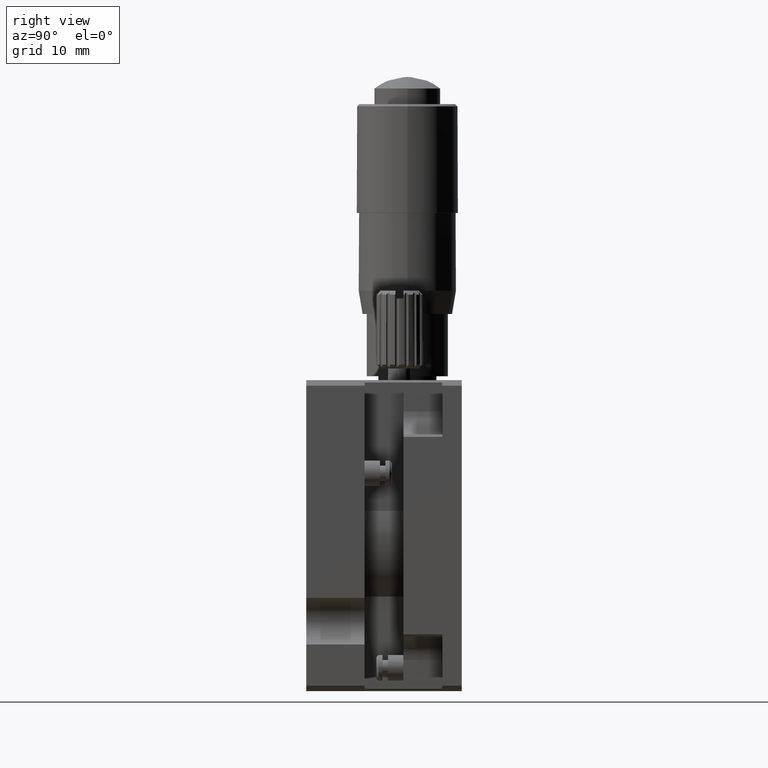
[diagram: clean part render]
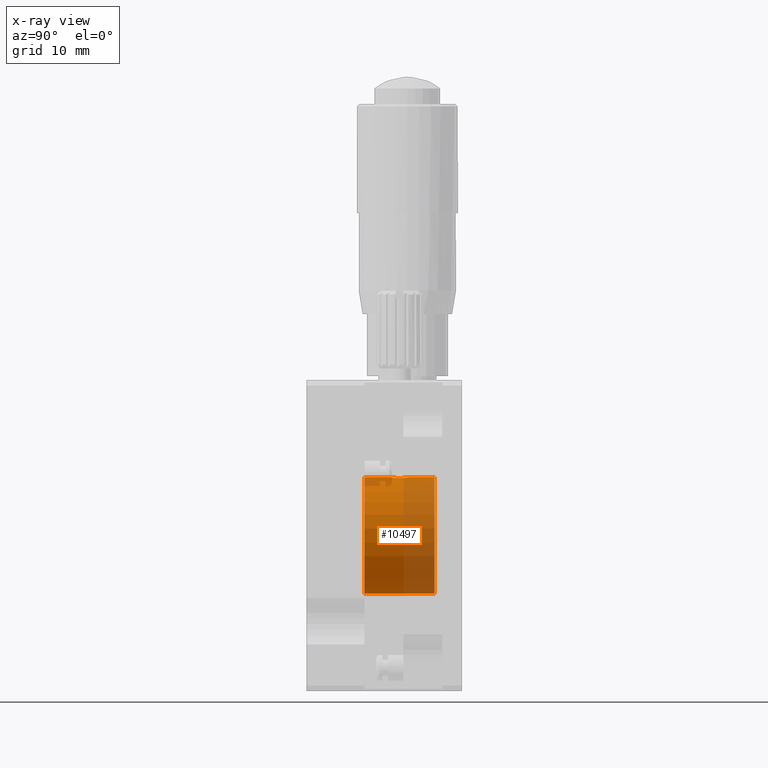
[diagram: x-ray — body ghosted, one internal face saturated and labeled with its STEP entity id]
A machine part, right view, then the same camera in x-ray: the body is ghosted and one INTERNAL B-rep face — a face not visible from any outside direction — is saturated and labeled: STEP entity #10497.
In plain terms, the highlighted cylindrical surface (partial cylindrical patch) has radius 7.5 mm, axis along (0, 1, 0).
Its self-contained STEP definition (entity closure, byte-faithful):
#7 = VERTEX_POINT ( 'NONE', #5739 ) ;
#18 = VERTEX_POINT ( 'NONE', #5742 ) ;
#19 = VERTEX_POINT ( 'NONE', #5715 ) ;
#24 = VERTEX_POINT ( 'NONE', #5730 ) ;
#27 = VERTEX_POINT ( 'NONE', #5732 ) ;
#34 = VERTEX_POINT ( 'NONE', #5734 ) ;
#53 = VERTEX_POINT ( 'NONE', #5750 ) ;
#138 = B_SPLINE_CURVE_WITH_KNOTS ( 'NONE', 3,
 ( #5835, #5824, #5833, #5812, #5825, #5848, #5836, #5849, #5806, #5809 ),
 .UNSPECIFIED., .F., .F.,
 ( 4, 2, 2, 2, 4 ),
 ( 0.003850478827912868100, 0.004331855425285195000, 0.004813232022657521400, 0.005294608620029847900, 0.005775985217402175200 ),
 .UNSPECIFIED. ) ;
#186 = B_SPLINE_CURVE_WITH_KNOTS ( 'NONE', 3,
 ( #6950, #6941, #6966, #6954, #6956, #6963, #6957, #6955, #6961, #6962 ),
 .UNSPECIFIED., .F., .F.,
 ( 4, 2, 2, 2, 4 ),
 ( 0.005775985217402175200, 0.006256988866448538600, 0.006737992515494901900, 0.007218996164541266100, 0.007699999813587629500 ),
 .UNSPECIFIED. ) ;
#292 = EDGE_CURVE ( 'NONE', #34, #53, #138, .T. ) ;
#375 = ORIENTED_EDGE ( 'NONE', *, *, #10457, .F. ) ;
#1212 = AXIS2_PLACEMENT_3D ( 'NONE', #3097, #3108, #3107 ) ;
#1264 = AXIS2_PLACEMENT_3D ( 'NONE', #4120, #4123, #4124 ) ;
#1324 = AXIS2_PLACEMENT_3D ( 'NONE', #3235, #3252, #3226 ) ;
#2861 = EDGE_LOOP ( 'NONE', ( #6345, #6344, #6376, #6375, #6343, #6357, #375 ) ) ;
#3097 = CARTESIAN_POINT ( 'NONE',  ( 20.00000000000000000, 16.50000000000000000, -20.00000000000000000 ) ) ;
#3107 = DIRECTION ( 'NONE',  ( 0.0000000000000000000, 0.0000000000000000000, 1.000000000000000000 ) ) ;
#3108 = DIRECTION ( 'NONE',  ( -0.0000000000000000000, -1.000000000000000000, -0.0000000000000000000 ) ) ;
#3226 = DIRECTION ( 'NONE',  ( 0.0000000000000000000, 0.0000000000000000000, 1.000000000000000000 ) ) ;
#3235 = CARTESIAN_POINT ( 'NONE',  ( 20.00000000000000000, 7.500000000000000000, -20.00000000000000000 ) ) ;
#3252 = DIRECTION ( 'NONE',  ( 0.0000000000000000000, 1.000000000000000000, 0.0000000000000000000 ) ) ;
#4120 = CARTESIAN_POINT ( 'NONE',  ( 20.00000000000000000, 7.500000000000000000, -20.00000000000000000 ) ) ;
#4123 = DIRECTION ( 'NONE',  ( -0.0000000000000000000, -1.000000000000000000, -0.0000000000000000000 ) ) ;
#4124 = DIRECTION ( 'NONE',  ( 0.0000000000000000000, 0.0000000000000000000, 1.000000000000000000 ) ) ;
#4138 = EDGE_CURVE ( 'NONE', #53, #18, #186, .T. ) ;
#4151 = EDGE_CURVE ( 'NONE', #7, #27, #6829, .T. ) ;
#5715 = CARTESIAN_POINT ( 'NONE',  ( 20.00000000000000000, 16.50000000000000000, -12.50000000000000000 ) ) ;
#5730 = CARTESIAN_POINT ( 'NONE',  ( 20.00000000000000000, 7.500000000000000000, -12.50000000000000000 ) ) ;
#5732 = CARTESIAN_POINT ( 'NONE',  ( 20.00000000000000000, 16.50000000000000000, -27.50000000000000000 ) ) ;
#5734 = CARTESIAN_POINT ( 'NONE',  ( 20.00000000000000000, 13.22950000000000000, -12.50000000000000000 ) ) ;
#5739 = CARTESIAN_POINT ( 'NONE',  ( 20.00000000000000000, 7.500000000000000000, -27.50000000000000000 ) ) ;
#5742 = CARTESIAN_POINT ( 'NONE',  ( 20.00000000000000000, 10.77050000000000000, -12.50000000000000000 ) ) ;
#5750 = CARTESIAN_POINT ( 'NONE',  ( 21.22950000000000200, 12.00000000000000000, -12.60146435096782200 ) ) ;
#5806 = CARTESIAN_POINT ( 'NONE',  ( 21.22950000000000500, 12.16251410981211700, -12.60146435096782400 ) ) ;
#5809 = CARTESIAN_POINT ( 'NONE',  ( 21.22950000000000200, 12.00000000000000000, -12.60146435096782200 ) ) ;
#5812 = CARTESIAN_POINT ( 'NONE',  ( 20.61879820068536200, 13.07444755670552000, -12.52409942777816500 ) ) ;
#5824 = CARTESIAN_POINT ( 'NONE',  ( 20.16065083050511200, 13.22950000000000200, -12.50000000000000200 ) ) ;
#5825 = CARTESIAN_POINT ( 'NONE',  ( 20.75569892558422300, 12.98300264075281000, -12.53729573366722100 ) ) ;
#5833 = CARTESIAN_POINT ( 'NONE',  ( 20.32273132443346200, 13.19716049780776100, -12.50547899655037500 ) ) ;
#5835 = CARTESIAN_POINT ( 'NONE',  ( 20.00000000000000000, 13.22950000000000000, -12.50000000000000000 ) ) ;
#5836 = CARTESIAN_POINT ( 'NONE',  ( 21.07367239415960800, 12.62044281564674500, -12.57698534503488100 ) ) ;
#5848 = CARTESIAN_POINT ( 'NONE',  ( 20.98250971626930500, 12.75633968247908500, -12.56375696401018700 ) ) ;
#5849 = CARTESIAN_POINT ( 'NONE',  ( 21.19743246621845900, 12.32229983914682900, -12.59594202706020600 ) ) ;
#6343 = ORIENTED_EDGE ( 'NONE', *, *, #292, .F. ) ;
#6344 = ORIENTED_EDGE ( 'NONE', *, *, #10452, .T. ) ;
#6345 = ORIENTED_EDGE ( 'NONE', *, *, #4151, .F. ) ;
#6357 = ORIENTED_EDGE ( 'NONE', *, *, #10161, .T. ) ;
#6375 = ORIENTED_EDGE ( 'NONE', *, *, #4138, .F. ) ;
#6376 = ORIENTED_EDGE ( 'NONE', *, *, #10106, .T. ) ;
#6817 = VECTOR ( 'NONE', #7053, 1000.000000000000000 ) ;
#6829 = LINE ( 'NONE', #7050, #6817 ) ;
#6941 = CARTESIAN_POINT ( 'NONE',  ( 21.22950000000000200, 11.83761179860456100, -12.60146435096782000 ) ) ;
#6950 = CARTESIAN_POINT ( 'NONE',  ( 21.22950000000000200, 12.00000000000000000, -12.60146435096782200 ) ) ;
#6954 = CARTESIAN_POINT ( 'NONE',  ( 21.07410193048246700, 11.38043948623790800, -12.57704968190599200 ) ) ;
#6955 = CARTESIAN_POINT ( 'NONE',  ( 20.32423662321572900, 10.80327297355355900, -12.50554892700129100 ) ) ;
#6956 = CARTESIAN_POINT ( 'NONE',  ( 20.98275955577766200, 11.24406752875341900, -12.56379542908509500 ) ) ;
#6957 = CARTESIAN_POINT ( 'NONE',  ( 20.61979998612951400, 10.92615972283791900, -12.52418738526709400 ) ) ;
#6961 = CARTESIAN_POINT ( 'NONE',  ( 20.16266398247035200, 10.77050000000000400, -12.50000000000000200 ) ) ;
#6962 = CARTESIAN_POINT ( 'NONE',  ( 20.00000000000000000, 10.77050000000000000, -12.50000000000000000 ) ) ;
#6963 = CARTESIAN_POINT ( 'NONE',  ( 20.75665725607446500, 11.01779836979002700, -12.53739827125968800 ) ) ;
#6966 = CARTESIAN_POINT ( 'NONE',  ( 21.19734580800004400, 11.67764429066010700, -12.59593021386056800 ) ) ;
#7050 = CARTESIAN_POINT ( 'NONE',  ( 20.00000000000000000, 7.500000000000000000, -27.50000000000000000 ) ) ;
#7053 = DIRECTION ( 'NONE',  ( 0.0000000000000000000, 1.000000000000000000, 0.0000000000000000000 ) ) ;
#8089 = CARTESIAN_POINT ( 'NONE',  ( 20.00000000000000000, 7.500000000000000000, -12.50000000000000000 ) ) ;
#8105 = DIRECTION ( 'NONE',  ( 0.0000000000000000000, 1.000000000000000000, 0.0000000000000000000 ) ) ;
#8815 = DIRECTION ( 'NONE',  ( 0.0000000000000000000, 1.000000000000000000, 0.0000000000000000000 ) ) ;
#8829 = CARTESIAN_POINT ( 'NONE',  ( 20.00000000000000000, 7.500000000000000000, -12.50000000000000000 ) ) ;
#9108 = VECTOR ( 'NONE', #8815, 1000.000000000000000 ) ;
#9116 = LINE ( 'NONE', #8829, #9108 ) ;
#9197 = LINE ( 'NONE', #8089, #9232 ) ;
#9232 = VECTOR ( 'NONE', #8105, 1000.000000000000000 ) ;
#9622 = CIRCLE ( 'NONE', #1212, 7.500000000000000000 ) ;
#9664 = CIRCLE ( 'NONE', #1264, 7.500000000000000000 ) ;
#9690 = FACE_OUTER_BOUND ( 'NONE', #2861, .T. ) ;
#9713 = CYLINDRICAL_SURFACE ( 'NONE', #1324, 7.500000000000000000 ) ;
#10106 = EDGE_CURVE ( 'NONE', #24, #18, #9116, .T. ) ;
#10161 = EDGE_CURVE ( 'NONE', #34, #19, #9197, .T. ) ;
#10452 = EDGE_CURVE ( 'NONE', #7, #24, #9664, .T. ) ;
#10457 = EDGE_CURVE ( 'NONE', #27, #19, #9622, .T. ) ;
#10497 = ADVANCED_FACE ( 'NONE', ( #9690 ), #9713, .F. ) ;